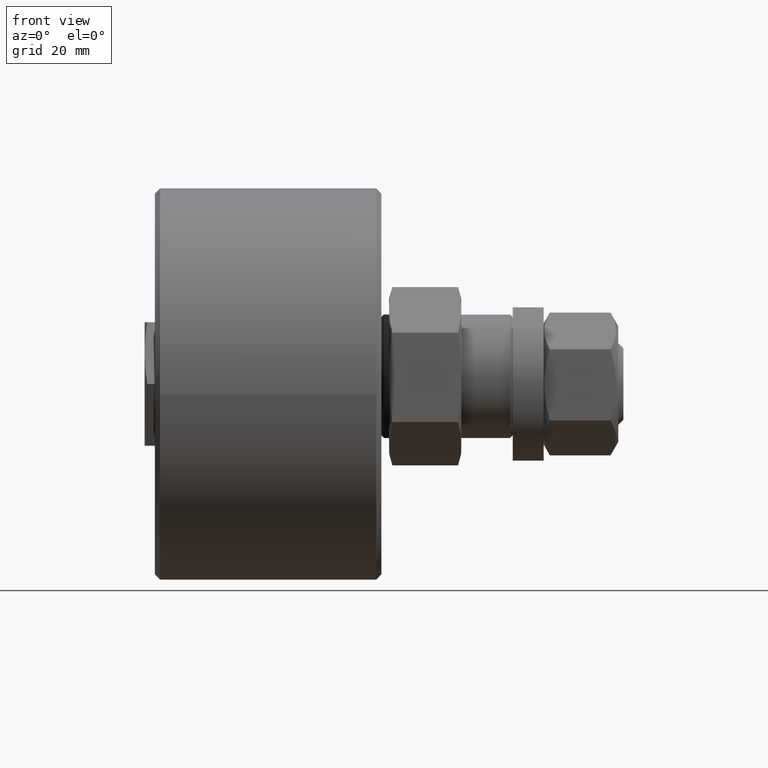
[diagram: clean part render]
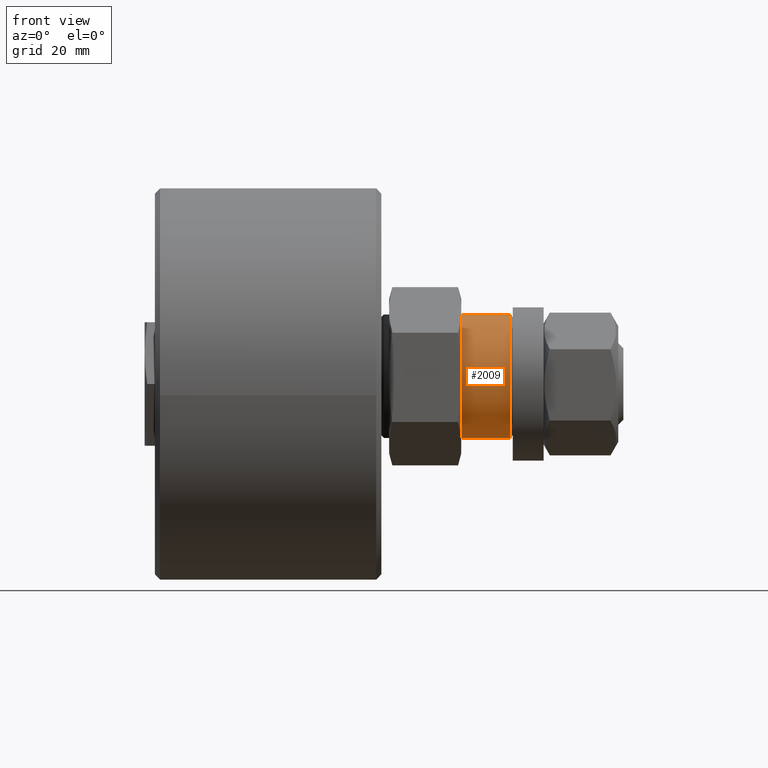
[diagram: same view with one face highlighted and labeled with its STEP entity id]
A machine part, front view. The second image highlights one B-rep face of the part: STEP entity #2009.
In plain terms, the highlighted cylindrical surface (bore or boss wall) has radius 12 mm, axis along (1, -0, 0).
Its self-contained STEP definition (entity closure, byte-faithful):
#278=CYLINDRICAL_SURFACE('',#2331,12.);
#322=FACE_OUTER_BOUND('',#443,.T.);
#443=EDGE_LOOP('',(#1472,#1473,#1474,#1475,#1476));
#584=LINE('',#3282,#658);
#658=VECTOR('',#2688,12.);
#733=CIRCLE('',#2329,12.);
#734=CIRCLE('',#2330,12.);
#735=CIRCLE('',#2332,12.);
#875=VERTEX_POINT('',#3275);
#876=VERTEX_POINT('',#3277);
#877=VERTEX_POINT('',#3281);
#1106=EDGE_CURVE('',#875,#876,#733,.T.);
#1107=EDGE_CURVE('',#876,#875,#734,.T.);
#1108=EDGE_CURVE('',#876,#877,#584,.T.);
#1109=EDGE_CURVE('',#877,#877,#735,.T.);
#1472=ORIENTED_EDGE('',*,*,#1106,.F.);
#1473=ORIENTED_EDGE('',*,*,#1107,.F.);
#1474=ORIENTED_EDGE('',*,*,#1108,.T.);
#1475=ORIENTED_EDGE('',*,*,#1109,.T.);
#1476=ORIENTED_EDGE('',*,*,#1108,.F.);
#2009=ADVANCED_FACE('',(#322),#278,.T.);
#2329=AXIS2_PLACEMENT_3D('',#3278,#2682,#2683);
#2330=AXIS2_PLACEMENT_3D('',#3279,#2684,#2685);
#2331=AXIS2_PLACEMENT_3D('',#3280,#2686,#2687);
#2332=AXIS2_PLACEMENT_3D('',#3283,#2689,#2690);
#2682=DIRECTION('center_axis',(1.,0.,0.));
#2683=DIRECTION('ref_axis',(0.,-1.,0.));
#2684=DIRECTION('center_axis',(1.,0.,0.));
#2685=DIRECTION('ref_axis',(0.,-1.,0.));
#2686=DIRECTION('center_axis',(1.,0.,0.));
#2687=DIRECTION('ref_axis',(0.,1.,0.));
#2688=DIRECTION('',(-1.,0.,0.));
#2689=DIRECTION('center_axis',(1.,0.,0.));
#2690=DIRECTION('ref_axis',(0.,1.,0.));
#3275=CARTESIAN_POINT('',(25.,12.,1.46957615897682E-15));
#3277=CARTESIAN_POINT('',(25.,-12.,-1.46957615897682E-15));
#3278=CARTESIAN_POINT('Origin',(25.,0.,0.));
#3279=CARTESIAN_POINT('Origin',(25.,0.,0.));
#3280=CARTESIAN_POINT('Origin',(20.5,0.,0.));
#3281=CARTESIAN_POINT('',(15.5,-12.,-1.46957615897682E-15));
#3282=CARTESIAN_POINT('',(20.5,-12.,-1.46957615897682E-15));
#3283=CARTESIAN_POINT('Origin',(15.5,0.,0.));